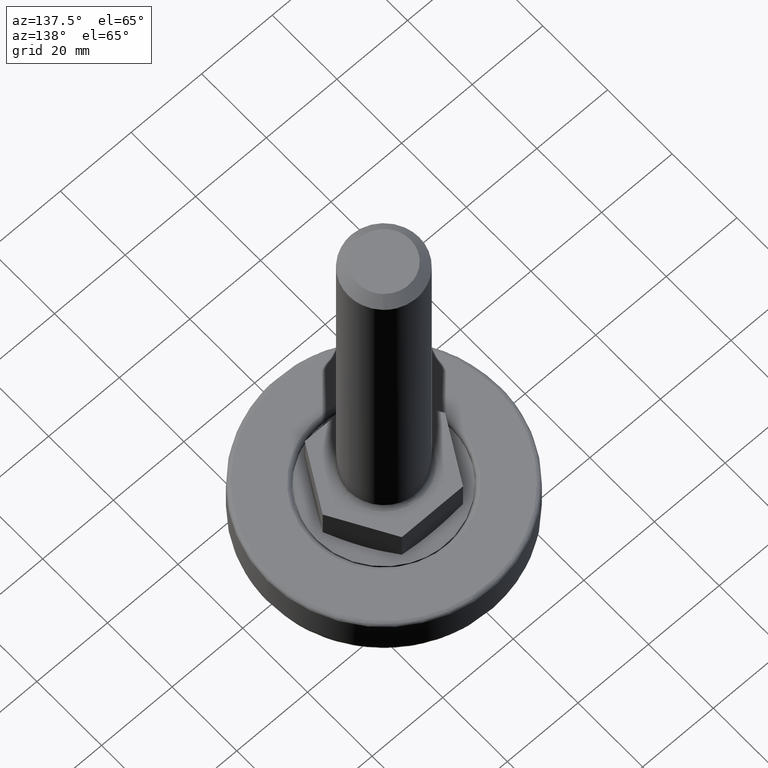
[diagram: clean part render]
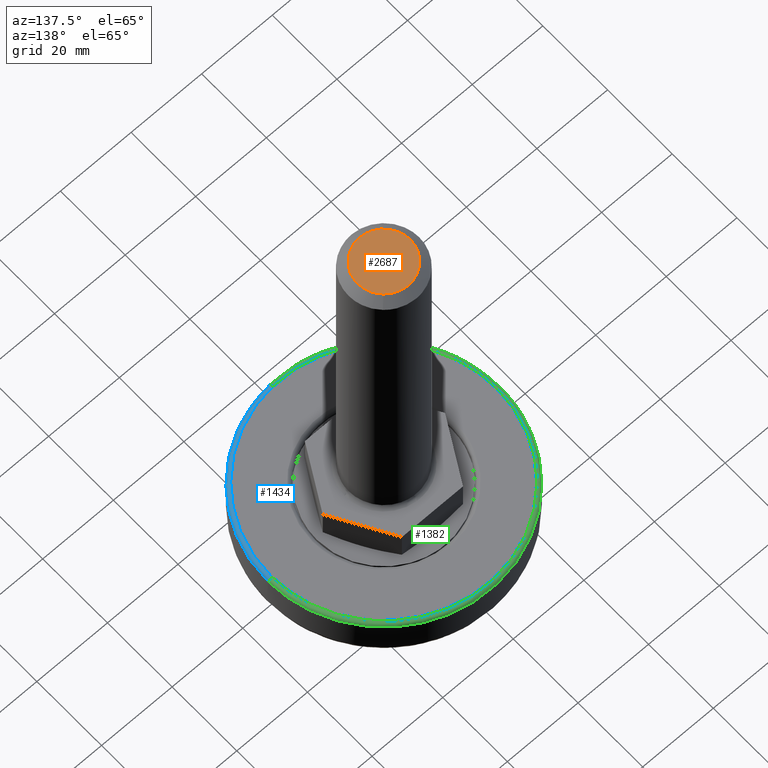
[diagram: same view with three faces highlighted in distinct colors, each labeled with its STEP entity id]
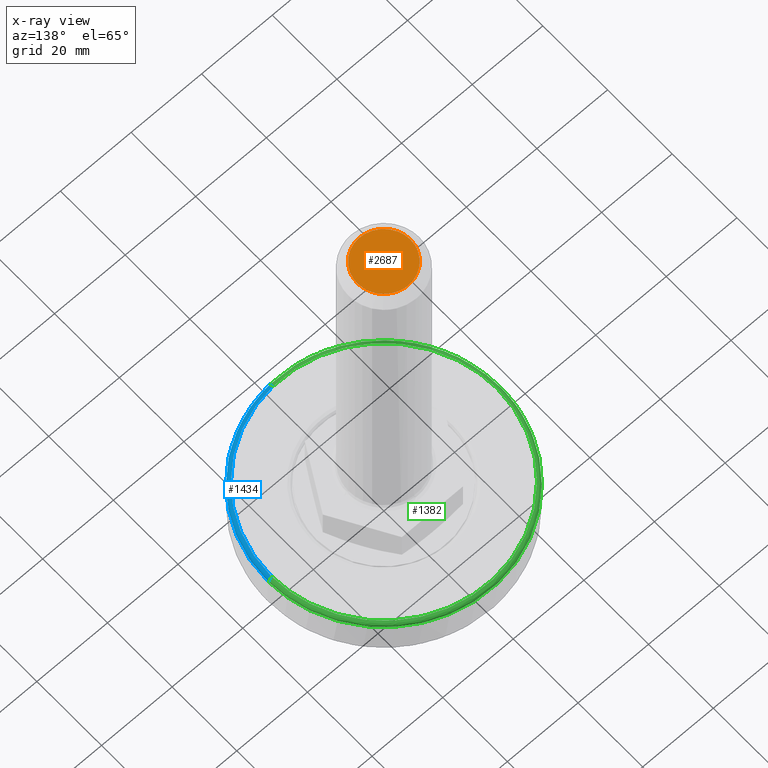
[diagram: x-ray of the same camera — body ghosted, the three highlighted faces saturated]
A machine part, auxiliary view with three faces highlighted in distinct colors.
The next image is the same camera in x-ray (body ghosted, the three faces saturated) — at least one of them is partly hidden behind the body in this view.
Their STEP definitions:

[orange] entity #2687 — the highlighted face is a freeform B-spline surface patch.
#1726=CARTESIAN_POINT('',(7.500000000000000,0.0,121.0));
#1727=VERTEX_POINT('',#1726);
#1728=CARTESIAN_POINT('',(5.172294320882055,5.431148263320713,121.0));
#1729=VERTEX_POINT('',#1728);
#1730=CARTESIAN_POINT('',(7.500000000000000,0.0,121.0));
#1731=CARTESIAN_POINT('',(7.500000000000000,3.214383358170244,120.999999999999940));
#1732=CARTESIAN_POINT('',(5.172294320882055,5.431148263320713,120.999999999999960));
#1740=(BOUNDED_CURVE()B_SPLINE_CURVE(2,(#1730,#1731,#1732),.UNSPECIFIED.,.F.,.U.)B_SPLINE_CURVE_WITH_KNOTS((3,3),(0.500000000000000,0.628682976150349),.UNSPECIFIED.)CURVE()GEOMETRIC_REPRESENTATION_ITEM()RATIONAL_B_SPLINE_CURVE((1.0,0.849238515635318,0.853680523245769))REPRESENTATION_ITEM(''));
#1741=EDGE_CURVE('',#1727,#1729,#1740,.T.);
#1743=CARTESIAN_POINT('',(-7.500000000000000,0.0,121.0));
#1744=VERTEX_POINT('',#1743);
#1745=CARTESIAN_POINT('',(-7.500000000000000,0.0,121.0));
#1746=CARTESIAN_POINT('',(-7.500000000000000,-7.500000000000000,121.0));
#1747=CARTESIAN_POINT('',(0.0,-7.500000000000000,121.0));
#1748=CARTESIAN_POINT('',(7.500000000000000,-7.500000000000000,121.0));
#1749=CARTESIAN_POINT('',(7.500000000000000,0.0,121.0));
#1757=(BOUNDED_CURVE()B_SPLINE_CURVE(2,(#1745,#1746,#1747,#1748,#1749),.UNSPECIFIED.,.F.,.U.)B_SPLINE_CURVE_WITH_KNOTS((3,2,3),(0.0,0.250000000000000,0.500000000000000),.UNSPECIFIED.)CURVE()GEOMETRIC_REPRESENTATION_ITEM()RATIONAL_B_SPLINE_CURVE((1.0,0.707106781186547,1.0,0.707106781186547,1.0))REPRESENTATION_ITEM(''));
#1758=EDGE_CURVE('',#1744,#1727,#1757,.T.);
#1760=CARTESIAN_POINT('',(0.065449016864621,7.499714423061231,120.999999999914610));
#1761=VERTEX_POINT('',#1760);
#1762=CARTESIAN_POINT('',(0.065449016864621,7.499714423061231,120.999999999914540));
#1763=CARTESIAN_POINT('',(0.032725131781369,7.500000000000000,121.000000000000040));
#1764=CARTESIAN_POINT('',(0.0,7.500000000000000,121.0));
#1765=CARTESIAN_POINT('',(-7.500000000000000,7.500000000000000,121.0));
#1766=CARTESIAN_POINT('',(-7.500000000000000,0.0,121.0));
#1774=(BOUNDED_CURVE()B_SPLINE_CURVE(2,(#1762,#1763,#1764,#1765,#1766),.UNSPECIFIED.,.F.,.U.)B_SPLINE_CURVE_WITH_KNOTS((3,2,3),(0.748460105635604,0.750000000000000,1.0),.UNSPECIFIED.)CURVE()GEOMETRIC_REPRESENTATION_ITEM()RATIONAL_B_SPLINE_CURVE((0.996414028032346,0.998195901531918,1.0,0.707106781186547,1.0))REPRESENTATION_ITEM(''));
#1775=EDGE_CURVE('',#1761,#1744,#1774,.T.);
#1885=CARTESIAN_POINT('',(5.172294320882055,5.431148263320713,120.999999999999960));
#1886=CARTESIAN_POINT('',(3.027345861260395,7.473866340310356,120.999999999999970));
#1887=CARTESIAN_POINT('',(0.065449016864621,7.499714423061231,120.999999999914590));
#1895=(BOUNDED_CURVE()B_SPLINE_CURVE(2,(#1885,#1886,#1887),.UNSPECIFIED.,.F.,.U.)B_SPLINE_CURVE_WITH_KNOTS((3,3),(0.628682976150350,0.748460105635604),.UNSPECIFIED.)CURVE()GEOMETRIC_REPRESENTATION_ITEM()RATIONAL_B_SPLINE_CURVE((0.853680523245769,0.857815109938184,0.996414028032346))REPRESENTATION_ITEM(''));
#1896=EDGE_CURVE('',#1729,#1761,#1895,.T.);
#2676=CARTESIAN_POINT('',(-8.249249970927089,8.248950187995936,121.0));
#2677=CARTESIAN_POINT('',(8.249250373258443,8.248950187995936,121.0));
#2678=CARTESIAN_POINT('',(-8.249249970927089,-8.249236111476922,121.0));
#2679=CARTESIAN_POINT('',(8.249250373258443,-8.249236111476922,121.0));
#2680=B_SPLINE_SURFACE_WITH_KNOTS('',1,1,((#2676,#2678),(#2677,#2679)),.UNSPECIFIED.,.F.,.F.,.U.,(2,2),(2,2),(0.0,16.498500344185530),(0.0,16.498186299472859),.UNSPECIFIED.);
#2681=ORIENTED_EDGE('',*,*,#1758,.T.);
#2682=ORIENTED_EDGE('',*,*,#1741,.T.);
#2683=ORIENTED_EDGE('',*,*,#1896,.T.);
#2684=ORIENTED_EDGE('',*,*,#1775,.T.);
#2685=EDGE_LOOP('',(#2681,#2682,#2683,#2684));
#2686=FACE_OUTER_BOUND('',#2685,.T.);
#2687=ADVANCED_FACE('',(#2686),#2680,.F.);

[blue] entity #1434 — the highlighted face is a freeform B-spline surface patch.
#889=CARTESIAN_POINT('',(32.997394458725807,0.414679316160577,11.000000000972150));
#890=VERTEX_POINT('',#889);
#906=CARTESIAN_POINT('',(33.0,0.0,11.0));
#907=VERTEX_POINT('',#906);
#908=CARTESIAN_POINT('',(32.997394458725807,0.414679316160577,11.000000000972152));
#909=CARTESIAN_POINT('',(33.000000000000007,0.207347843742316,11.000000000000005));
#910=CARTESIAN_POINT('',(33.0,0.0,11.0));
#918=(BOUNDED_CURVE()B_SPLINE_CURVE(2,(#908,#909,#910),.UNSPECIFIED.,.F.,.U.)B_SPLINE_CURVE_WITH_KNOTS((3,3),(0.497784295921622,0.500000000000000),.UNSPECIFIED.)CURVE()GEOMETRIC_REPRESENTATION_ITEM()RATIONAL_B_SPLINE_CURVE((0.994854295643768,0.997404141202183,1.0))REPRESENTATION_ITEM(''));
#919=EDGE_CURVE('',#890,#907,#918,.T.);
#921=CARTESIAN_POINT('',(2.301197302018221,-32.919667236732273,11.000000000997471));
#922=VERTEX_POINT('',#921);
#923=CARTESIAN_POINT('',(33.0,0.0,11.0));
#924=CARTESIAN_POINT('',(33.000000000000007,-30.773715959744941,11.0));
#925=CARTESIAN_POINT('',(2.301197302018221,-32.919667236732273,11.000000000997469));
#933=(BOUNDED_CURVE()B_SPLINE_CURVE(2,(#923,#924,#925),.UNSPECIFIED.,.F.,.U.)B_SPLINE_CURVE_WITH_KNOTS((3,3),(0.500000000000000,0.737833686534836),.UNSPECIFIED.)CURVE()GEOMETRIC_REPRESENTATION_ITEM()RATIONAL_B_SPLINE_CURVE((1.0,0.721360504034169,0.972879876386436))REPRESENTATION_ITEM(''));
#934=EDGE_CURVE('',#907,#922,#933,.T.);
#1314=CARTESIAN_POINT('',(2.231464051094301,-31.922101571249112,12.0));
#1315=VERTEX_POINT('',#1314);
#1333=CARTESIAN_POINT('',(31.997473423218690,0.402113276490496,12.0));
#1334=VERTEX_POINT('',#1333);
#1350=CARTESIAN_POINT('',(31.997473423218690,0.402113276490496,11.999999999999996));
#1351=CARTESIAN_POINT('',(32.997394456781777,0.414679316126180,11.999999982602601));
#1352=CARTESIAN_POINT('',(32.997394458725815,0.414679316160577,11.000000000972147));
#1360=(BOUNDED_CURVE()B_SPLINE_CURVE(2,(#1350,#1351,#1352),.UNSPECIFIED.,.F.,.U.)B_SPLINE_CURVE_WITH_KNOTS((3,3),(-1.734750773580861,-0.265249210361900),.UNSPECIFIED.)CURVE()GEOMETRIC_REPRESENTATION_ITEM()RATIONAL_B_SPLINE_CURVE((0.889029717169882,0.628638949778574,0.889029722860460))REPRESENTATION_ITEM(''));
#1361=EDGE_CURVE('',#1334,#890,#1360,.T.);
#1367=CARTESIAN_POINT('',(2.231464051094302,-31.922101571249105,12.000000000000004));
#1368=CARTESIAN_POINT('',(2.301197301850453,-32.919667234744182,11.999999983235259));
#1369=CARTESIAN_POINT('',(2.301197302018221,-32.919667236732266,11.000000000997467));
#1377=(BOUNDED_CURVE()B_SPLINE_CURVE(2,(#1367,#1368,#1369),.UNSPECIFIED.,.F.,.U.)B_SPLINE_CURVE_WITH_KNOTS((3,3),(-1.734750774238254,-0.265249210414527),.UNSPECIFIED.)CURVE()GEOMETRIC_REPRESENTATION_ITEM()RATIONAL_B_SPLINE_CURVE((0.869031705840546,0.614498219909561,0.869031711157153))REPRESENTATION_ITEM(''));
#1378=EDGE_CURVE('',#1315,#922,#1377,.T.);
#1383=CARTESIAN_POINT('',(31.927940874884140,0.401239458608010,11.997579301295993));
#1384=CARTESIAN_POINT('',(32.306852737844530,-29.750021335537429,11.997579301295989));
#1385=CARTESIAN_POINT('',(2.226614937469297,-31.852732811071014,11.997579301295991));
#1386=CARTESIAN_POINT('',(33.074925622771389,0.415653652779735,12.077538215560157));
#1387=CARTESIAN_POINT('',(33.467449579581235,-30.818766133546756,12.077538215560152));
#1388=CARTESIAN_POINT('',(2.306604229065116,-32.997015771754057,12.077538215560150));
#1389=CARTESIAN_POINT('',(32.994974011129308,0.414648898307913,10.930462830454989));
#1390=CARTESIAN_POINT('',(33.386549124597444,-30.744268308538757,10.930462830454985));
#1391=CARTESIAN_POINT('',(2.301028502980726,-32.917252490638354,10.930462830454983));
#1399=(BOUNDED_SURFACE()B_SPLINE_SURFACE(2,2,((#1383,#1386,#1389),(#1384,#1387,#1390),(#1385,#1388,#1391)),.UNSPECIFIED.,.F.,.F.,.U.)B_SPLINE_SURFACE_WITH_KNOTS((3,3),(3,3),(0.0,52.470888274321368),(0.0,1.822375099579808),.UNSPECIFIED.)GEOMETRIC_REPRESENTATION_ITEM()RATIONAL_B_SPLINE_SURFACE(((0.916342485549142,0.601326364306183,0.916342125426188),(0.658687605426255,0.432246926483116,0.658687346561769),(0.895730095139311,0.587800009280338,0.895729743117034)))REPRESENTATION_ITEM('')SURFACE());
#1400=CARTESIAN_POINT('',(32.0,0.0,12.0));
#1401=VERTEX_POINT('',#1400);
#1402=CARTESIAN_POINT('',(32.0,0.0,12.0));
#1403=CARTESIAN_POINT('',(32.000000000000007,-29.841179112352499,12.000000000000002));
#1404=CARTESIAN_POINT('',(2.231464051094302,-31.922101571249108,11.999999999999996));
#1412=(BOUNDED_CURVE()B_SPLINE_CURVE(2,(#1402,#1403,#1404),.UNSPECIFIED.,.F.,.U.)B_SPLINE_CURVE_WITH_KNOTS((3,3),(0.500000000000000,0.737833686534104),.UNSPECIFIED.)CURVE()GEOMETRIC_REPRESENTATION_ITEM()RATIONAL_B_SPLINE_CURVE((1.0,0.721360504035027,0.972879876384886))REPRESENTATION_ITEM(''));
#1413=EDGE_CURVE('',#1401,#1315,#1412,.T.);
#1414=ORIENTED_EDGE('',*,*,#1413,.T.);
#1415=ORIENTED_EDGE('',*,*,#1378,.T.);
#1416=ORIENTED_EDGE('',*,*,#934,.F.);
#1417=ORIENTED_EDGE('',*,*,#919,.F.);
#1418=ORIENTED_EDGE('',*,*,#1361,.F.);
#1419=CARTESIAN_POINT('',(31.997473423218690,0.402113276490496,11.999999999999996));
#1420=CARTESIAN_POINT('',(31.999999999999996,0.201064575854402,12.000000000000005));
#1421=CARTESIAN_POINT('',(32.0,0.0,12.0));
#1429=(BOUNDED_CURVE()B_SPLINE_CURVE(2,(#1419,#1420,#1421),.UNSPECIFIED.,.F.,.U.)B_SPLINE_CURVE_WITH_KNOTS((3,3),(0.497784295920476,0.500000000000000),.UNSPECIFIED.)CURVE()GEOMETRIC_REPRESENTATION_ITEM()RATIONAL_B_SPLINE_CURVE((0.994854295641130,0.997404141200840,1.0))REPRESENTATION_ITEM(''));
#1430=EDGE_CURVE('',#1334,#1401,#1429,.T.);
#1431=ORIENTED_EDGE('',*,*,#1430,.T.);
#1432=EDGE_LOOP('',(#1414,#1415,#1416,#1417,#1418,#1431));
#1433=FACE_OUTER_BOUND('',#1432,.T.);
#1434=ADVANCED_FACE('',(#1433),#1399,.T.);

[green] entity #1382 — the highlighted face is a freeform B-spline surface patch.
#744=CARTESIAN_POINT('',(-22.294476285725128,-24.330152633003340,11.0));
#745=VERTEX_POINT('',#744);
#751=CARTESIAN_POINT('',(-33.0,0.0,11.0));
#752=VERTEX_POINT('',#751);
#753=CARTESIAN_POINT('',(-22.294476285725128,-24.330152633003337,11.0));
#754=CARTESIAN_POINT('',(-33.0,-14.520348435090604,11.0));
#755=CARTESIAN_POINT('',(-33.0,0.0,11.0));
#763=(BOUNDED_CURVE()B_SPLINE_CURVE(2,(#753,#754,#755),.UNSPECIFIED.,.F.,.U.)B_SPLINE_CURVE_WITH_KNOTS((3,3),(0.868415202065470,1.0),.UNSPECIFIED.)CURVE()GEOMETRIC_REPRESENTATION_ITEM()RATIONAL_B_SPLINE_CURVE((0.853959781704283,0.845838819944151,1.0))REPRESENTATION_ITEM(''));
#764=EDGE_CURVE('',#745,#752,#763,.T.);
#766=CARTESIAN_POINT('',(-24.330152633003340,22.294476285725128,11.0));
#767=VERTEX_POINT('',#766);
#768=CARTESIAN_POINT('',(-33.0,0.0,11.0));
#769=CARTESIAN_POINT('',(-33.000000000000007,12.832997268001760,10.999999999999998));
#770=CARTESIAN_POINT('',(-24.330152633003344,22.294476285725125,11.0));
#778=(BOUNDED_CURVE()B_SPLINE_CURVE(2,(#768,#769,#770),.UNSPECIFIED.,.F.,.U.)B_SPLINE_CURVE_WITH_KNOTS((3,3),(0.0,0.118415202065470),.UNSPECIFIED.)CURVE()GEOMETRIC_REPRESENTATION_ITEM()RATIONAL_B_SPLINE_CURVE((1.0,0.861267961242397,0.853959781704283))REPRESENTATION_ITEM(''));
#779=EDGE_CURVE('',#752,#767,#778,.T.);
#889=CARTESIAN_POINT('',(32.997394458725807,0.414679316160577,11.000000000972150));
#890=VERTEX_POINT('',#889);
#891=CARTESIAN_POINT('',(-24.330152633003337,22.294476285725128,11.0));
#892=CARTESIAN_POINT('',(-14.520348435090618,33.000000000000007,11.0));
#893=CARTESIAN_POINT('',(0.0,33.0,11.0));
#894=CARTESIAN_POINT('',(32.587893686921674,33.0,11.0));
#895=CARTESIAN_POINT('',(32.997394458725807,0.414679316160577,11.000000000972145));
#903=(BOUNDED_CURVE()B_SPLINE_CURVE(2,(#891,#892,#893,#894,#895),.UNSPECIFIED.,.F.,.U.)B_SPLINE_CURVE_WITH_KNOTS((3,2,3),(0.118415202065470,0.250000000000000,0.497784295921622),.UNSPECIFIED.)CURVE()GEOMETRIC_REPRESENTATION_ITEM()RATIONAL_B_SPLINE_CURVE((0.853959781704283,0.845838819944151,1.0,0.709702639984365,0.994854295643768))REPRESENTATION_ITEM(''));
#904=EDGE_CURVE('',#767,#890,#903,.T.);
#921=CARTESIAN_POINT('',(2.301197302018221,-32.919667236732273,11.000000000997471));
#922=VERTEX_POINT('',#921);
#936=CARTESIAN_POINT('',(2.301197302018220,-32.919667236732273,11.000000000997471));
#937=CARTESIAN_POINT('',(1.152000823894233,-33.0,11.000000000000004));
#938=CARTESIAN_POINT('',(0.0,-33.0,11.0));
#939=CARTESIAN_POINT('',(-12.832997268001733,-33.000000000000007,11.0));
#940=CARTESIAN_POINT('',(-22.294476285725136,-24.330152633003333,11.0));
#948=(BOUNDED_CURVE()B_SPLINE_CURVE(2,(#936,#937,#938,#939,#940),.UNSPECIFIED.,.F.,.U.)B_SPLINE_CURVE_WITH_KNOTS((3,2,3),(0.737833686534835,0.750000000000000,0.868415202065470),.UNSPECIFIED.)CURVE()GEOMETRIC_REPRESENTATION_ITEM()RATIONAL_B_SPLINE_CURVE((0.972879876386434,0.985746277152378,1.0,0.861267961242397,0.853959781704283))REPRESENTATION_ITEM(''));
#949=EDGE_CURVE('',#922,#745,#948,.T.);
#1279=CARTESIAN_POINT('',(2.226613195795055,-31.852733166551893,11.997579317549004));
#1280=CARTESIAN_POINT('',(1.315002537114756,-31.916457818104753,11.997579317548995));
#1281=CARTESIAN_POINT('',(0.401239461537947,-31.927941108028676,11.997579317548993));
#1282=CARTESIAN_POINT('',(-31.526701646490736,-32.329180569566631,11.997579317548997));
#1283=CARTESIAN_POINT('',(-31.927941108028676,-0.401239461537949,11.997579317548993));
#1284=CARTESIAN_POINT('',(-32.329180569566631,31.526701646490736,11.997579317548997));
#1285=CARTESIAN_POINT('',(-0.401239461537951,31.927941108028676,11.997579317548993));
#1286=CARTESIAN_POINT('',(31.526701646490736,32.329180569566631,11.997579317548997));
#1287=CARTESIAN_POINT('',(31.927941108028676,0.401239461537953,11.997579317548993));
#1288=CARTESIAN_POINT('',(2.306602405765332,-32.997015867381194,12.077537943939781));
#1289=CARTESIAN_POINT('',(1.362242899406401,-33.063029773548621,12.077537943939774));
#1290=CARTESIAN_POINT('',(0.415653652380762,-33.074925591023636,12.077537943939776));
#1291=CARTESIAN_POINT('',(-32.659271938642881,-33.490579243404397,12.077537943939777));
#1292=CARTESIAN_POINT('',(-33.074925591023636,-0.415653652380764,12.077537943939776));
#1293=CARTESIAN_POINT('',(-33.490579243404397,32.659271938642881,12.077537943939777));
#1294=CARTESIAN_POINT('',(-0.415653652380766,33.074925591023636,12.077537943939776));
#1295=CARTESIAN_POINT('',(32.659271938642881,33.490579243404397,12.077537943939777));
#1296=CARTESIAN_POINT('',(33.074925591023636,0.415653652380768,12.077537943939776));
#1297=CARTESIAN_POINT('',(2.301026686350992,-32.917252618402038,10.930462841547412));
#1298=CARTESIAN_POINT('',(1.358949967706391,-32.983106950029288,10.930462841547410));
#1299=CARTESIAN_POINT('',(0.414648898317631,-32.994974011902450,10.930462841547412));
#1300=CARTESIAN_POINT('',(-32.580325113584827,-33.409622910220079,10.930462841547413));
#1301=CARTESIAN_POINT('',(-32.994974011902450,-0.414648898317633,10.930462841547412));
#1302=CARTESIAN_POINT('',(-33.409622910220079,32.580325113584827,10.930462841547413));
#1303=CARTESIAN_POINT('',(-0.414648898317635,32.994974011902450,10.930462841547412));
#1304=CARTESIAN_POINT('',(32.580325113584813,33.409622910220079,10.930462841547413));
#1305=CARTESIAN_POINT('',(32.994974011902450,0.414648898317637,10.930462841547412));
#1313=(BOUNDED_SURFACE()B_SPLINE_SURFACE(2,2,((#1279,#1288,#1297),(#1280,#1289,#1298),(#1281,#1290,#1299),(#1282,#1291,#1300),(#1283,#1292,#1301),(#1284,#1293,#1302),(#1285,#1294,#1303),(#1286,#1295,#1304),(#1287,#1296,#1305)),.UNSPECIFIED.,.F.,.F.,.U.)B_SPLINE_SURFACE_WITH_KNOTS((3,2,2,2,3),(3,3),(0.0,2.186885097981051,56.859064686960828,111.531244275940590,166.203423864920410),(0.0,1.822374803909685),.UNSPECIFIED.)GEOMETRIC_REPRESENTATION_ITEM()RATIONAL_B_SPLINE_SURFACE(((0.895730018595575,0.587800071602471,0.895729757417794),(0.905606779348395,0.594281444959602,0.905606515290739),(0.916342387972045,0.601326415415735,0.916342120784090),(0.647951916423707,0.425201986047065,0.647951727493292),(0.916342387972045,0.601326415415735,0.916342120784090),(0.647951916423707,0.425201986047065,0.647951727493292),(0.916342387972045,0.601326415415735,0.916342120784090),(0.647951916423707,0.425201986047065,0.647951727493292),(0.916342387972045,0.601326415415735,0.916342120784090)))REPRESENTATION_ITEM('')SURFACE());
#1314=CARTESIAN_POINT('',(2.231464051094301,-31.922101571249112,12.0));
#1315=VERTEX_POINT('',#1314);
#1316=CARTESIAN_POINT('',(-32.0,0.0,12.0));
#1317=VERTEX_POINT('',#1316);
#1318=CARTESIAN_POINT('',(2.231464051094301,-31.922101571249105,12.000000000000004));
#1319=CARTESIAN_POINT('',(1.117091708086758,-32.000000000000007,12.000000000000005));
#1320=CARTESIAN_POINT('',(0.0,-32.0,12.0));
#1321=CARTESIAN_POINT('',(-31.999999999999996,-31.999999999999996,12.0));
#1322=CARTESIAN_POINT('',(-32.0,0.0,12.0));
#1330=(BOUNDED_CURVE()B_SPLINE_CURVE(2,(#1318,#1319,#1320,#1321,#1322),.UNSPECIFIED.,.F.,.U.)B_SPLINE_CURVE_WITH_KNOTS((3,2,3),(0.737833686534104,0.750000000000000,1.0),.UNSPECIFIED.)CURVE()GEOMETRIC_REPRESENTATION_ITEM()RATIONAL_B_SPLINE_CURVE((0.972879876384887,0.985746277151521,1.0,0.707106781186548,1.0))REPRESENTATION_ITEM(''));
#1331=EDGE_CURVE('',#1315,#1317,#1330,.T.);
#1332=ORIENTED_EDGE('',*,*,#1331,.T.);
#1333=CARTESIAN_POINT('',(31.997473423218690,0.402113276490496,12.0));
#1334=VERTEX_POINT('',#1333);
#1335=CARTESIAN_POINT('',(-32.0,0.0,12.0));
#1336=CARTESIAN_POINT('',(-31.999999999999996,31.999999999999996,12.0));
#1337=CARTESIAN_POINT('',(0.0,32.0,12.0));
#1338=CARTESIAN_POINT('',(31.600381756809032,32.0,12.0));
#1339=CARTESIAN_POINT('',(31.997473423218690,0.402113276490496,11.999999999999996));
#1347=(BOUNDED_CURVE()B_SPLINE_CURVE(2,(#1335,#1336,#1337,#1338,#1339),.UNSPECIFIED.,.F.,.U.)B_SPLINE_CURVE_WITH_KNOTS((3,2,3),(0.0,0.250000000000000,0.497784295920476),.UNSPECIFIED.)CURVE()GEOMETRIC_REPRESENTATION_ITEM()RATIONAL_B_SPLINE_CURVE((1.0,0.707106781186548,1.0,0.709702639985707,0.994854295641130))REPRESENTATION_ITEM(''));
#1348=EDGE_CURVE('',#1317,#1334,#1347,.T.);
#1349=ORIENTED_EDGE('',*,*,#1348,.T.);
#1350=CARTESIAN_POINT('',(31.997473423218690,0.402113276490496,11.999999999999996));
#1351=CARTESIAN_POINT('',(32.997394456781777,0.414679316126180,11.999999982602601));
#1352=CARTESIAN_POINT('',(32.997394458725815,0.414679316160577,11.000000000972147));
#1360=(BOUNDED_CURVE()B_SPLINE_CURVE(2,(#1350,#1351,#1352),.UNSPECIFIED.,.F.,.U.)B_SPLINE_CURVE_WITH_KNOTS((3,3),(-1.734750773580861,-0.265249210361900),.UNSPECIFIED.)CURVE()GEOMETRIC_REPRESENTATION_ITEM()RATIONAL_B_SPLINE_CURVE((0.889029717169882,0.628638949778574,0.889029722860460))REPRESENTATION_ITEM(''));
#1361=EDGE_CURVE('',#1334,#890,#1360,.T.);
#1362=ORIENTED_EDGE('',*,*,#1361,.T.);
#1363=ORIENTED_EDGE('',*,*,#904,.F.);
#1364=ORIENTED_EDGE('',*,*,#779,.F.);
#1365=ORIENTED_EDGE('',*,*,#764,.F.);
#1366=ORIENTED_EDGE('',*,*,#949,.F.);
#1367=CARTESIAN_POINT('',(2.231464051094302,-31.922101571249105,12.000000000000004));
#1368=CARTESIAN_POINT('',(2.301197301850453,-32.919667234744182,11.999999983235259));
#1369=CARTESIAN_POINT('',(2.301197302018221,-32.919667236732266,11.000000000997467));
#1377=(BOUNDED_CURVE()B_SPLINE_CURVE(2,(#1367,#1368,#1369),.UNSPECIFIED.,.F.,.U.)B_SPLINE_CURVE_WITH_KNOTS((3,3),(-1.734750774238254,-0.265249210414527),.UNSPECIFIED.)CURVE()GEOMETRIC_REPRESENTATION_ITEM()RATIONAL_B_SPLINE_CURVE((0.869031705840546,0.614498219909561,0.869031711157153))REPRESENTATION_ITEM(''));
#1378=EDGE_CURVE('',#1315,#922,#1377,.T.);
#1379=ORIENTED_EDGE('',*,*,#1378,.F.);
#1380=EDGE_LOOP('',(#1332,#1349,#1362,#1363,#1364,#1365,#1366,#1379));
#1381=FACE_OUTER_BOUND('',#1380,.T.);
#1382=ADVANCED_FACE('',(#1381),#1313,.T.);